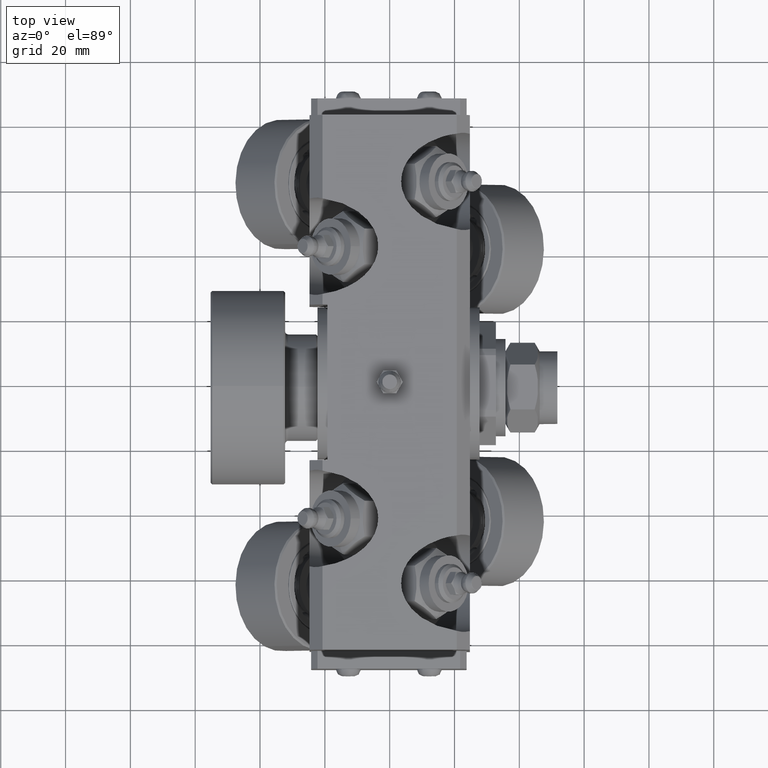
[diagram: clean part render]
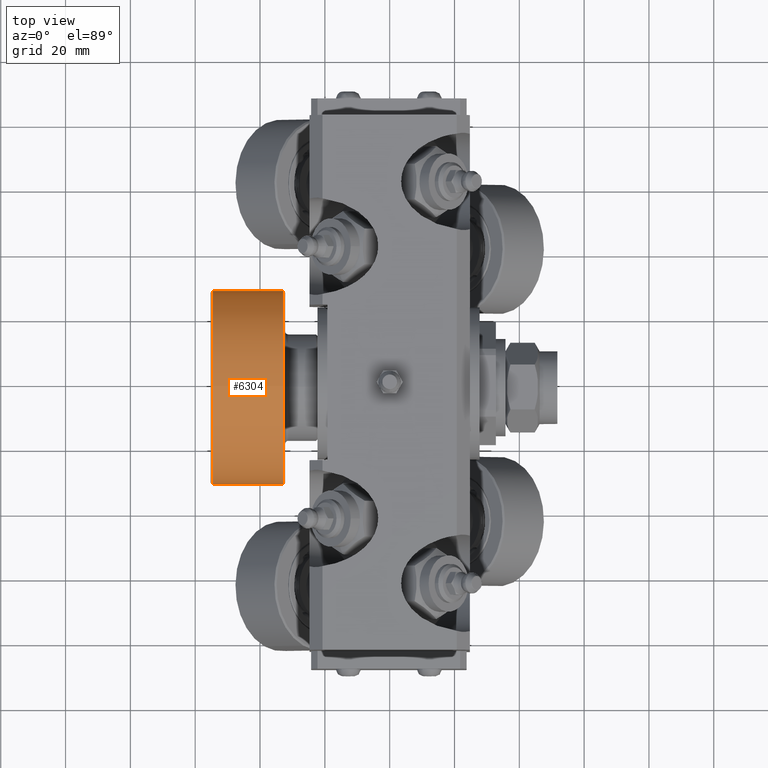
[diagram: same view with one face highlighted and labeled with its STEP entity id]
A machine part, top view. The second image highlights one B-rep face of the part: STEP entity #6304.
In plain terms, the highlighted cylindrical surface (bore or boss wall) has radius 30 mm, axis along (-1, 0, 0).
Its self-contained STEP definition (entity closure, byte-faithful):
#871=FACE_OUTER_BOUND('',#1282,.T.);
#1282=EDGE_LOOP('',(#5395,#5396,#5397,#5398,#5399,#5400));
#1680=CIRCLE('',#7366,30.);
#1681=CIRCLE('',#7367,30.);
#1682=CIRCLE('',#7369,30.);
#1683=CIRCLE('',#7370,30.);
#2093=LINE('',#12704,#2462);
#2462=VECTOR('',#8864,30.);
#3047=VERTEX_POINT('',#12694);
#3048=VERTEX_POINT('',#12695);
#3049=VERTEX_POINT('',#12700);
#3050=VERTEX_POINT('',#12701);
#3861=EDGE_CURVE('',#3047,#3048,#1680,.T.);
#3862=EDGE_CURVE('',#3048,#3047,#1681,.T.);
#3864=EDGE_CURVE('',#3049,#3050,#1682,.T.);
#3865=EDGE_CURVE('',#3050,#3049,#1683,.T.);
#3866=EDGE_CURVE('',#3050,#3048,#2093,.T.);
#5395=ORIENTED_EDGE('',*,*,#3864,.F.);
#5396=ORIENTED_EDGE('',*,*,#3865,.F.);
#5397=ORIENTED_EDGE('',*,*,#3866,.T.);
#5398=ORIENTED_EDGE('',*,*,#3861,.F.);
#5399=ORIENTED_EDGE('',*,*,#3862,.F.);
#5400=ORIENTED_EDGE('',*,*,#3866,.F.);
#6059=CYLINDRICAL_SURFACE('',#7368,30.);
#6304=ADVANCED_FACE('',(#871),#6059,.T.);
#7366=AXIS2_PLACEMENT_3D('',#12696,#8853,#8854);
#7367=AXIS2_PLACEMENT_3D('',#12697,#8855,#8856);
#7368=AXIS2_PLACEMENT_3D('',#12699,#8858,#8859);
#7369=AXIS2_PLACEMENT_3D('',#12702,#8860,#8861);
#7370=AXIS2_PLACEMENT_3D('',#12703,#8862,#8863);
#8853=DIRECTION('center_axis',(1.,0.,-1.46957615897682E-15));
#8854=DIRECTION('ref_axis',(-1.36325196093122E-15,0.,-1.));
#8855=DIRECTION('center_axis',(1.,0.,-1.46957615897682E-15));
#8856=DIRECTION('ref_axis',(-1.36325196093122E-15,0.,-1.));
#8858=DIRECTION('center_axis',(-1.,0.,1.46957615897682E-15));
#8859=DIRECTION('ref_axis',(1.36325196093122E-15,0.,1.));
#8860=DIRECTION('center_axis',(-1.,0.,1.46957615897682E-15));
#8861=DIRECTION('ref_axis',(-1.36325196093122E-15,0.,-1.));
#8862=DIRECTION('center_axis',(-1.,0.,1.46957615897682E-15));
#8863=DIRECTION('ref_axis',(-1.36325196093122E-15,0.,-1.));
#8864=DIRECTION('',(1.,0.,-1.46957615897682E-15));
#12694=CARTESIAN_POINT('',(-30.9999999999999,-3.67394039744206E-15,30.));
#12695=CARTESIAN_POINT('',(-31.,-3.67394039744206E-15,-29.9999999999999));
#12696=CARTESIAN_POINT('Origin',(-31.,0.,5.53453579067819E-14));
#12697=CARTESIAN_POINT('Origin',(-31.,0.,5.53453579067819E-14));
#12699=CARTESIAN_POINT('Origin',(-42.,0.,7.15106956555269E-14));
#12700=CARTESIAN_POINT('',(-52.9999999999999,3.67394039744206E-15,30.0000000000001));
#12701=CARTESIAN_POINT('',(-53.,-3.67394039744206E-15,-29.9999999999999));
#12702=CARTESIAN_POINT('Origin',(-53.,0.,8.7676033404272E-14));
#12703=CARTESIAN_POINT('Origin',(-53.,0.,8.7676033404272E-14));
#12704=CARTESIAN_POINT('',(-42.,-3.67394039744206E-15,-29.9999999999999));